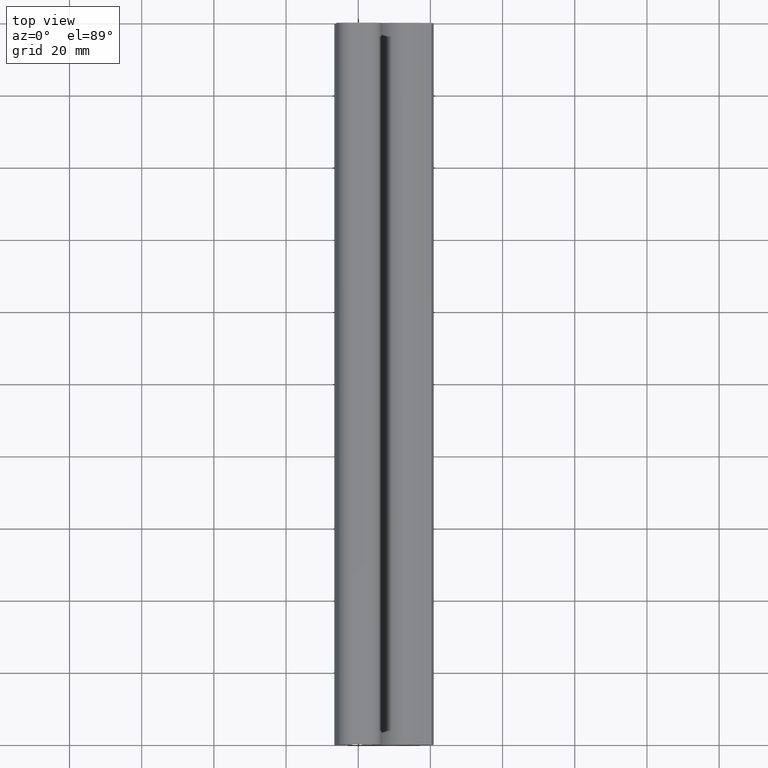
[diagram: clean part render]
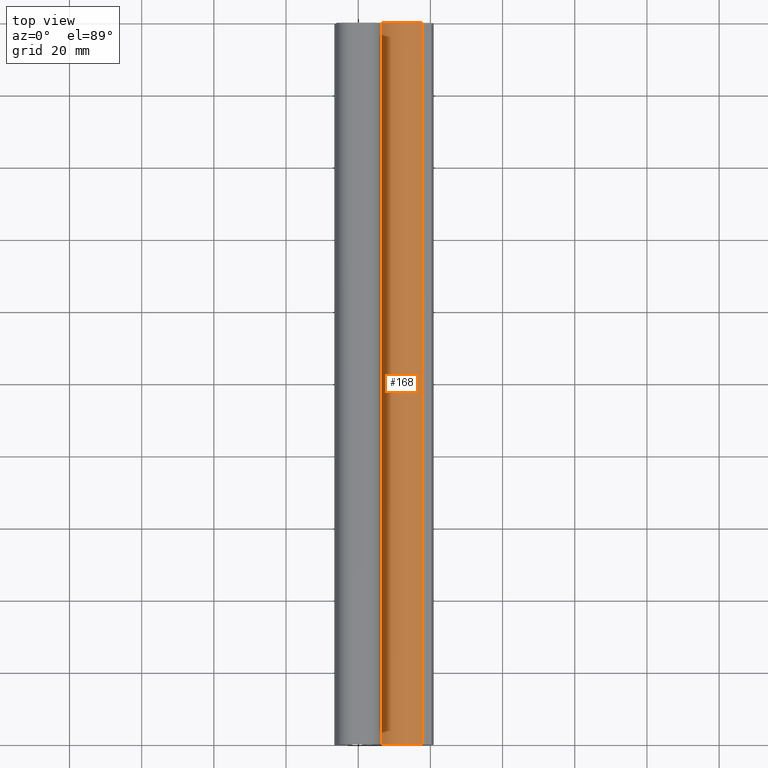
[diagram: same view with one face highlighted and labeled with its STEP entity id]
A machine part, top view. The second image highlights one B-rep face of the part: STEP entity #168.
In plain terms, the highlighted cylindrical surface (edge-blend (fillet) strip) has radius 8.0248 mm, axis along (0, 1, 0).
Its self-contained STEP definition (entity closure, byte-faithful):
#168=ADVANCED_FACE('',(#431),#430,.T.);
#430=CYLINDRICAL_SURFACE('',#1250,8.02484595070E+00);
#431=FACE_OUTER_BOUND('',#1251,.T.);
#1247=CARTESIAN_POINT('',(1.28751540493E+01,1.00000000000E+03,8.14276695297E+00));
#1248=DIRECTION('',(-0.00000000000E+00,1.00000000000E+00,-0.00000000000E+00));
#1249=DIRECTION('',(-7.94426969497E-01,-0.00000000000E+00,6.07359687611E-01));
#1250=AXIS2_PLACEMENT_3D('',#1247,#1248,#1249);
#1251=EDGE_LOOP('',(#1735,#1736,#1737,#1738));
#1735=ORIENTED_EDGE('',*,*,#2167,.F.);
#1736=ORIENTED_EDGE('',*,*,#2195,.F.);
#1737=ORIENTED_EDGE('',*,*,#2143,.T.);
#1738=ORIENTED_EDGE('',*,*,#2194,.T.);
#2143=EDGE_CURVE('',#2540,#2533,#2541,.T.);
#2167=EDGE_CURVE('',#2700,#2707,#2708,.T.);
#2194=EDGE_CURVE('',#2533,#2707,#2882,.T.);
#2195=EDGE_CURVE('',#2540,#2700,#2888,.T.);
#2533=VERTEX_POINT('',#4175);
#2540=VERTEX_POINT('',#4179);
#2541=CIRCLE('',#4183,8.02484595070E+00);
#2700=VERTEX_POINT('',#4281);
#2707=VERTEX_POINT('',#4286);
#2708=CIRCLE('',#4290,8.02484595070E+00);
#2882=LINE('',#4387,#4388);
#2888=LINE('',#4390,#4391);
#4175=CARTESIAN_POINT('',(6.50000000000E+00,2.00000000000E+02,1.30167348827E+01));
#4179=CARTESIAN_POINT('',(1.78532253478E+01,2.00000000000E+02,1.44369676502E+01));
#4180=CARTESIAN_POINT('',(1.28751540493E+01,2.00000000000E+02,8.14276695297E+00));
#4181=DIRECTION('',(0.00000000000E+00,-1.00000000000E+00,0.00000000000E+00));
#4182=DIRECTION('',(-0.00000000000E+00,-0.00000000000E+00,-1.00000000000E+00));
#4183=AXIS2_PLACEMENT_3D('',#4180,#4181,#4182);
#4281=CARTESIAN_POINT('',(1.78532253478E+01,0.00000000000E+00,1.44369676502E+01));
#4286=CARTESIAN_POINT('',(6.50000000000E+00,0.00000000000E+00,1.30167348827E+01));
#4287=CARTESIAN_POINT('',(1.28751540493E+01,0.00000000000E+00,8.14276695297E+00));
#4288=DIRECTION('',(0.00000000000E+00,-1.00000000000E+00,0.00000000000E+00));
#4289=DIRECTION('',(-0.00000000000E+00,-0.00000000000E+00,-1.00000000000E+00));
#4290=AXIS2_PLACEMENT_3D('',#4287,#4288,#4289);
#4387=CARTESIAN_POINT('',(6.50000000000E+00,2.00000000000E+02,1.30167348827E+01));
#4388=VECTOR('',#4389,2.00000000000E+02);
#4389=DIRECTION('',(0.00000000000E+00,-1.00000000000E+00,0.00000000000E+00));
#4390=CARTESIAN_POINT('',(1.78532253478E+01,2.00000000000E+02,1.44369676502E+01));
#4391=VECTOR('',#4392,2.00000000000E+02);
#4392=DIRECTION('',(0.00000000000E+00,-1.00000000000E+00,0.00000000000E+00));